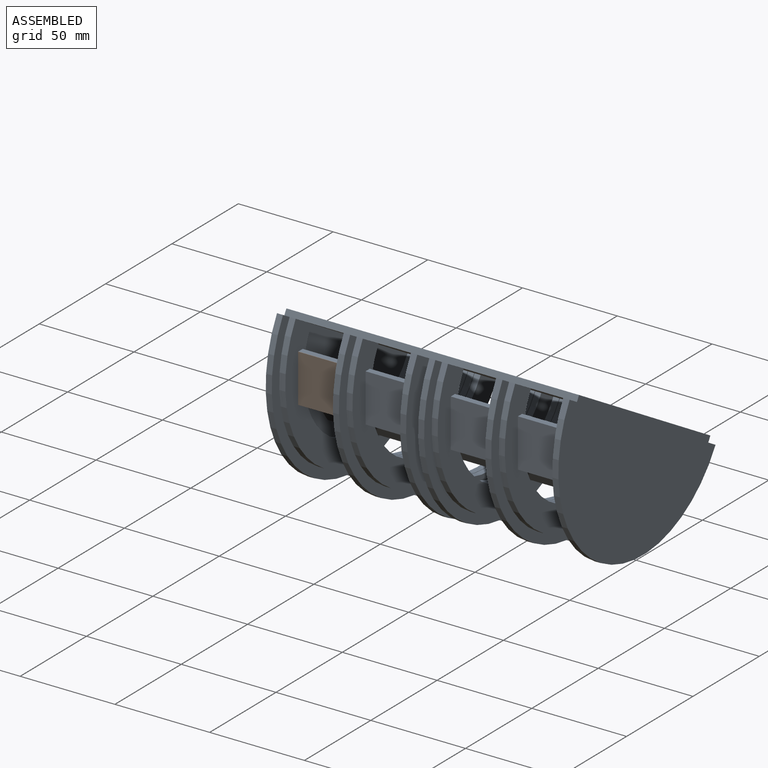
[diagram: assembled view]
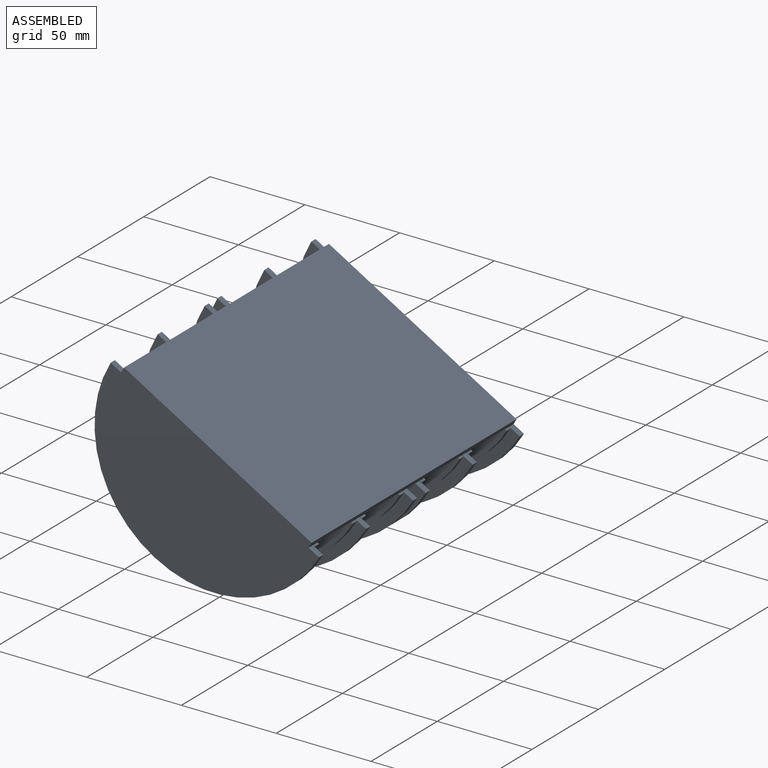
[diagram: assembled view, second angle]
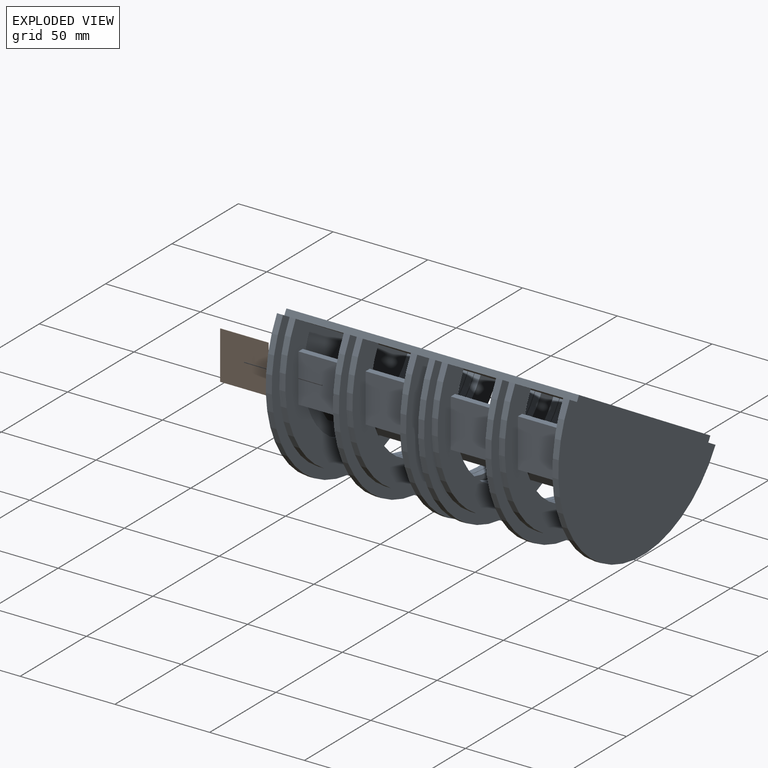
[diagram: exploded view]
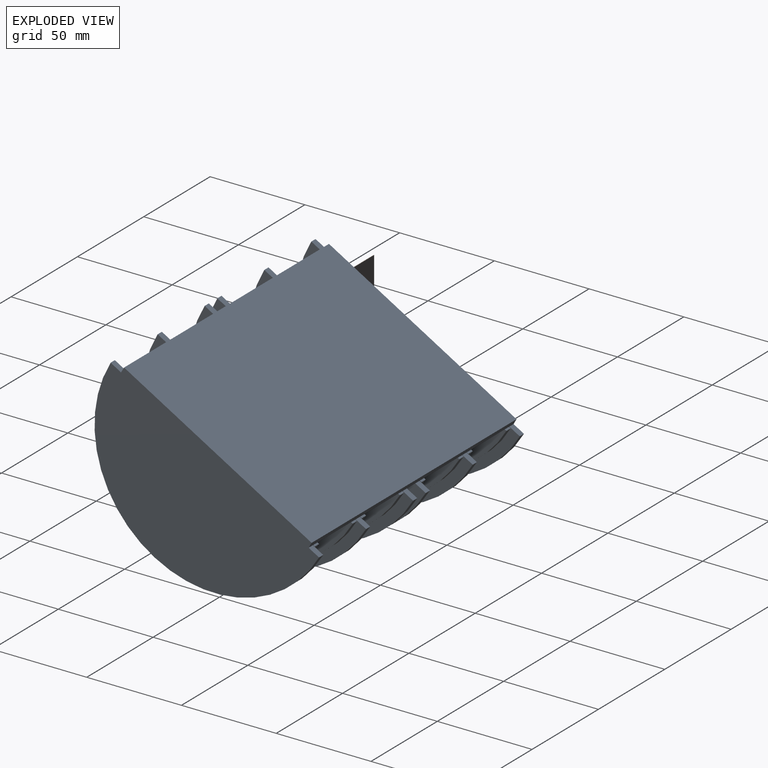
[diagram: exploded view, second angle]
ASSEMBLY  parts=2 mates=3
PART A: 146 faces, bbox 154.4x118.5x95.3 mm
  f0: plane 118.49x95.25mm, normal (-1,0,0), area 6091.9mm2, adj f26,f80,f81,f82,f86,f87,f88,f89
  f1: plane 118.49x95.25mm, normal (1,0,0), area 6091.9mm2, adj f26,f83,f84,f85,f86,f87,f88,f89
  f2: plane 108.54x87.25mm, normal (-1,0,0), area 2130.2mm2, adj f26,f27,f28,f29,f30,f122,f123,f124
  f3: plane 108.54x87.25mm, normal (1,0,0), area 2130.2mm2, adj f26,f27,f28,f29,f30,f142,f143,f144
  f4: plane 108.54x87.25mm, normal (-1,0,0), area 2130.2mm2, adj f26,f36,f37,f38,f39,f98,f99,f100
  f5: plane 108.54x87.25mm, normal (1,0,0), area 2130.2mm2, adj f26,f36,f37,f38,f39,f130,f131,f132
  f6: plane 108.54x87.25mm, normal (-1,0,0), area 2130.2mm2, adj f26,f40,f41,f42,f43,f134,f135,f136
  f7: plane 108.54x87.25mm, normal (1,0,0), area 2130.2mm2, adj f26,f40,f41,f42,f43,f94,f95,f96
  f8: plane 108.54x87.25mm, normal (-1,0,0), area 2130.2mm2, adj f26,f44,f45,f46,f47,f138,f139,f140
  f9: plane 108.54x87.25mm, normal (1,0,0), area 2130.2mm2, adj f26,f44,f45,f46,f47,f134,f135,f136
  f10: plane 108.54x87.25mm, normal (-1,0,0), area 2130.2mm2, adj f26,f48,f49,f50,f51,f130,f131,f132
  f11: plane 108.54x87.25mm, normal (1,0,0), area 2130.2mm2, adj f26,f48,f49,f50,f51,f102,f103,f104
  f12: plane 108.54x87.25mm, normal (-1,0,0), area 2130.2mm2, adj f26,f52,f53,f54,f55,f110,f111,f112
  f13: plane 108.54x87.25mm, normal (1,0,0), area 2130.2mm2, adj f26,f52,f53,f54,f55,f126,f127,f128
  f14: plane 108.54x87.25mm, normal (-1,0,0), area 2130.2mm2, adj f26,f56,f57,f58,f59,f126,f127,f128
  f15: plane 108.54x87.25mm, normal (1,0,0), area 2130.2mm2, adj f26,f56,f57,f58,f59,f114,f115,f116
  f16: plane 108.54x87.25mm, normal (-1,0,0), area 2130.2mm2, adj f26,f60,f61,f62,f63,f118,f119,f120
  f17: plane 108.54x87.25mm, normal (1,0,0), area 2130.2mm2, adj f26,f60,f61,f62,f63,f122,f123,f124
  f18: plane 118.49x95.25mm, normal (1,0,0), area 3149.6mm2, adj f26,f64,f65,f66,f67,f118,f119,f120
  f19: plane 118.49x95.25mm, normal (-1,0,0), area 3149.6mm2, adj f26,f64,f65,f66,f67,f114,f115,f116
  f20: plane 118.49x95.25mm, normal (1,0,0), area 3149.6mm2, adj f26,f68,f69,f70,f71,f110,f111,f112
  f21: plane 118.49x95.25mm, normal (-1,0,0), area 3149.6mm2, adj f26,f68,f69,f70,f71,f106,f107,f108
  f22: plane 118.49x95.25mm, normal (1,0,0), area 3149.6mm2, adj f26,f72,f73,f74,f75,f106,f107,f108
  f23: plane 118.49x95.25mm, normal (-1,0,0), area 3149.6mm2, adj f26,f72,f73,f74,f75,f102,f103,f104
  f24: plane 118.49x95.25mm, normal (1,0,0), area 3149.6mm2, adj f26,f76,f77,f78,f79,f98,f99,f100
  f25: plane 118.49x95.25mm, normal (-1,0,0), area 3149.6mm2, adj f26,f76,f77,f78,f79,f94,f95,f96
  f26: plane 148.08x98.99mm, normal (0,-0.5,-0.87), area 15958mm2, adj f0,f1,f2,f3,f4,f5,f6,f7
  f27: plane 3.18x0.88mm, normal (0,0.5,0.87), area 3.2mm2, adj f2,f3,f28,f35
  f28: cylinder r=58.17mm len=108.54mm, axis (1,0,0), area 580.2mm2, adj f2,f3,f27,f29
  f29: plane 3.18x0.88mm, normal (0,0.5,0.87), area 3.2mm2, adj f2,f3,f28,f34
  f30: cylinder r=44.45mm len=82.95mm, axis (1,0,0), area 443.4mm2, adj f2,f3,f26
  f31: plane 118.49x95.25mm, normal (-1,0,0), area 6696.7mm2, adj f32,f34,f35,f83,f84,f85
  f32: plane 154.43x98.99mm, normal (0,0.5,0.87), area 17651.6mm2, adj f31,f33,f34,f35
  f33: plane 118.49x95.25mm, normal (1,0,0), area 6696.7mm2, adj f32,f34,f35,f80,f81,f82
  f34: plane 154.43x2.75mm, normal (0,0.87,-0.5), area 490.3mm2, adj f26,f29,f31,f32,f33,f37,f41,f45
  f35: plane 154.43x2.75mm, normal (0,-0.87,0.5), area 490.3mm2, adj f26,f27,f31,f32,f33,f36,f40,f44
  f36: plane 3.18x0.88mm, normal (0,0.5,0.87), area 3.2mm2, adj f4,f5,f35,f38
  f37: plane 3.18x0.88mm, normal (0,0.5,0.87), area 3.2mm2, adj f4,f5,f34,f38
  f38: cylinder r=58.17mm len=108.54mm, axis (1,0,0), area 580.2mm2, adj f4,f5,f36,f37
  f39: cylinder r=44.45mm len=82.95mm, axis (1,0,0), area 443.4mm2, adj f4,f5,f26
  f40: plane 3.18x0.88mm, normal (0,0.5,0.87), area 3.2mm2, adj f6,f7,f35,f42
  f41: plane 3.18x0.88mm, normal (0,0.5,0.87), area 3.2mm2, adj f6,f7,f34,f42
  f42: cylinder r=58.17mm len=108.54mm, axis (1,0,0), area 580.2mm2, adj f6,f7,f40,f41
  f43: cylinder r=44.45mm len=82.95mm, axis (1,0,0), area 443.4mm2, adj f6,f7,f26
  f44: plane 3.18x0.88mm, normal (0,0.5,0.87), area 3.2mm2, adj f8,f9,f35,f46
  f45: plane 3.18x0.88mm, normal (0,0.5,0.87), area 3.2mm2, adj f8,f9,f34,f46
  f46: cylinder r=58.17mm len=108.54mm, axis (1,0,0), area 580.2mm2, adj f8,f9,f44,f45
  f47: cylinder r=44.45mm len=82.95mm, axis (1,0,0), area 443.4mm2, adj f8,f9,f26
  f48: plane 3.18x0.88mm, normal (0,0.5,0.87), area 3.2mm2, adj f10,f11,f35,f50
  f49: plane 3.18x0.88mm, normal (0,0.5,0.87), area 3.2mm2, adj f10,f11,f34,f50
  f50: cylinder r=58.17mm len=108.54mm, axis (1,0,0), area 580.2mm2, adj f10,f11,f48,f49
  f51: cylinder r=44.45mm len=82.95mm, axis (1,0,0), area 443.4mm2, adj f10,f11,f26
  f52: plane 3.18x0.88mm, normal (0,0.5,0.87), area 3.2mm2, adj f12,f13,f35,f54
  f53: plane 3.18x0.88mm, normal (0,0.5,0.87), area 3.2mm2, adj f12,f13,f34,f54
  f54: cylinder r=58.17mm len=108.54mm, axis (1,0,0), area 580.2mm2, adj f12,f13,f52,f53
  f55: cylinder r=44.45mm len=82.95mm, axis (1,0,0), area 443.4mm2, adj f12,f13,f26
  f56: plane 3.18x0.88mm, normal (0,0.5,0.87), area 3.2mm2, adj f14,f15,f35,f58
  f57: plane 3.18x0.88mm, normal (0,0.5,0.87), area 3.2mm2, adj f14,f15,f34,f58
  f58: cylinder r=58.17mm len=108.54mm, axis (1,0,0), area 580.2mm2, adj f14,f15,f56,f57
  f59: cylinder r=44.45mm len=82.95mm, axis (1,0,0), area 443.4mm2, adj f14,f15,f26
  f60: plane 3.18x0.88mm, normal (0,0.5,0.87), area 3.2mm2, adj f16,f17,f35,f62
  f61: plane 3.18x0.88mm, normal (0,0.5,0.87), area 3.2mm2, adj f16,f17,f34,f62
  f62: cylinder r=58.17mm len=108.54mm, axis (1,0,0), area 580.2mm2, adj f16,f17,f60,f61
  f63: cylinder r=44.45mm len=82.95mm, axis (1,0,0), area 443.4mm2, adj f16,f17,f26
  f64: plane 5.5x3.18mm, normal (0,0.5,0.87), area 20.2mm2, adj f18,f19,f34,f65
  f65: cylinder r=63.5mm len=118.49mm, axis (-1,0,0), area 633.4mm2, adj f18,f19,f64,f67
  f66: cylinder r=44.45mm len=82.95mm, axis (-1,0,0), area 443.4mm2, adj f18,f19,f26
  f67: plane 5.5x3.18mm, normal (0,0.5,0.87), area 20.2mm2, adj f18,f19,f35,f65
  f68: plane 5.5x3.18mm, normal (0,0.5,0.87), area 20.2mm2, adj f20,f21,f34,f69
  f69: cylinder r=63.5mm len=118.49mm, axis (-1,0,0), area 633.4mm2, adj f20,f21,f68,f71
  f70: cylinder r=44.45mm len=82.95mm, axis (-1,0,0), area 443.4mm2, adj f20,f21,f26
  f71: plane 5.5x3.18mm, normal (0,0.5,0.87), area 20.2mm2, adj f20,f21,f35,f69
  f72: plane 5.5x3.18mm, normal (0,0.5,0.87), area 20.2mm2, adj f22,f23,f34,f73
  f73: cylinder r=63.5mm len=118.49mm, axis (-1,0,0), area 633.4mm2, adj f22,f23,f72,f75
  f74: cylinder r=44.45mm len=82.95mm, axis (-1,0,0), area 443.4mm2, adj f22,f23,f26
  f75: plane 5.5x3.18mm, normal (0,0.5,0.87), area 20.2mm2, adj f22,f23,f35,f73
  f76: plane 5.5x3.18mm, normal (0,0.5,0.87), area 20.2mm2, adj f24,f25,f34,f77
  f77: cylinder r=63.5mm len=118.49mm, axis (-1,0,0), area 633.4mm2, adj f24,f25,f76,f79
  f78: cylinder r=44.45mm len=82.95mm, axis (-1,0,0), area 443.4mm2, adj f24,f25,f26
  f79: plane 5.5x3.18mm, normal (0,0.5,0.87), area 20.2mm2, adj f24,f25,f35,f77
  f80: plane 5.5x3.18mm, normal (0,0.5,0.87), area 20.2mm2, adj f0,f33,f34,f81
  f81: cylinder r=63.5mm len=118.49mm, axis (-1,0,0), area 633.4mm2, adj f0,f33,f80,f82
  f82: plane 5.5x3.18mm, normal (0,0.5,0.87), area 20.2mm2, adj f0,f33,f35,f81
  f83: plane 5.5x3.18mm, normal (0,0.5,0.87), area 20.2mm2, adj f1,f31,f34,f84
  f84: cylinder r=63.5mm len=118.49mm, axis (-1,0,0), area 633.4mm2, adj f1,f31,f83,f85
  f85: plane 5.5x3.18mm, normal (0,0.5,0.87), area 20.2mm2, adj f1,f31,f35,f84
  f86: plane 148.08x3.18mm, normal (0,1,0), area 470.2mm2, adj f0,f1,f87,f89
  f87: plane 148.08x25.4mm, normal (0,0,-1), area 3761.3mm2, adj f0,f1,f86,f88
  f88: plane 148.08x3.18mm, normal (0,-1,0), area 470.2mm2, adj f0,f1,f87,f89
  f89: plane 148.08x25.4mm, normal (0,0,1), area 3761.3mm2, adj f0,f1,f86,f88
  f90: plane 148.08x20.55mm, normal (0,-0.81,-0.59), area 3761.3mm2, adj f0,f1,f91,f92
  f91: plane 148.08x2.57mm, normal (0,0.59,-0.81), area 470.2mm2, adj f0,f1,f90,f93
  f92: plane 148.08x2.57mm, normal (0,-0.59,0.81), area 470.2mm2, adj f0,f1,f90,f93
  f93: plane 148.08x20.55mm, normal (0,0.81,0.59), area 3761.3mm2, adj f0,f1,f91,f92
  f94: plane 3.18x0.25mm, normal (0,0,-1), area 0.8mm2, adj f7,f25,f95,f97
  f95: plane 25.4x0.25mm, normal (0,1,0), area 6.5mm2, adj f7,f25,f94,f96
  f96: plane 3.18x0.25mm, normal (0,0,1), area 0.8mm2, adj f7,f25,f95,f97
  f97: plane 25.4x0.25mm, normal (0,-1,0), area 6.5mm2, adj f7,f25,f94,f96
  f98: plane 3.18x0.25mm, normal (0,0,-1), area 0.8mm2, adj f4,f24,f99,f101
  f99: plane 25.4x0.25mm, normal (0,1,0), area 6.5mm2, adj f4,f24,f98,f100
  f100: plane 3.18x0.25mm, normal (0,0,1), area 0.8mm2, adj f4,f24,f99,f101
  f101: plane 25.4x0.25mm, normal (0,-1,0), area 6.5mm2, adj f4,f24,f98,f100
  f102: plane 3.18x0.25mm, normal (0,0,-1), area 0.8mm2, adj f11,f23,f103,f105
  f103: plane 25.4x0.25mm, normal (0,1,0), area 6.5mm2, adj f11,f23,f102,f104
  f104: plane 3.18x0.25mm, normal (0,0,1), area 0.8mm2, adj f11,f23,f103,f105
  f105: plane 25.4x0.25mm, normal (0,-1,0), area 6.5mm2, adj f11,f23,f102,f104
  f106: plane 6.35x3.18mm, normal (0,0,-1), area 20.2mm2, adj f21,f22,f107,f109
  f107: plane 25.4x6.35mm, normal (0,1,0), area 161.3mm2, adj f21,f22,f106,f108
  f108: plane 6.35x3.18mm, normal (0,0,1), area 20.2mm2, adj f21,f22,f107,f109
  f109: plane 25.4x6.35mm, normal (0,-1,0), area 161.3mm2, adj f21,f22,f106,f108
  f110: plane 3.18x0.25mm, normal (0,0,-1), area 0.8mm2, adj f12,f20,f111,f113
  f111: plane 25.4x0.25mm, normal (0,1,0), area 6.5mm2, adj f12,f20,f110,f112
  f112: plane 3.18x0.25mm, normal (0,0,1), area 0.8mm2, adj f12,f20,f111,f113
  f113: plane 25.4x0.25mm, normal (0,-1,0), area 6.5mm2, adj f12,f20,f110,f112
  f114: plane 3.18x0.25mm, normal (0,0,-1), area 0.8mm2, adj f15,f19,f115,f117
  f115: plane 25.4x0.25mm, normal (0,1,0), area 6.5mm2, adj f15,f19,f114,f116
  f116: plane 3.18x0.25mm, normal (0,0,1), area 0.8mm2, adj f15,f19,f115,f117
  f117: plane 25.4x0.25mm, normal (0,-1,0), area 6.5mm2, adj f15,f19,f114,f116
  f118: plane 3.18x0.25mm, normal (0,0,-1), area 0.8mm2, adj f16,f18,f119,f121
  f119: plane 25.4x0.25mm, normal (0,1,0), area 6.5mm2, adj f16,f18,f118,f120
  f120: plane 3.18x0.25mm, normal (0,0,1), area 0.8mm2, adj f16,f18,f119,f121
  f121: plane 25.4x0.25mm, normal (0,-1,0), area 6.5mm2, adj f16,f18,f118,f120
  f122: plane 25.4x3.18mm, normal (0,0,-1), area 80.6mm2, adj f2,f17,f123,f125
  f123: plane 25.4x25.4mm, normal (0,1,0), area 645.2mm2, adj f2,f17,f122,f124
  f124: plane 25.4x3.18mm, normal (0,0,1), area 80.6mm2, adj f2,f17,f123,f125
  f125: plane 25.4x25.4mm, normal (0,-1,0), area 645.2mm2, adj f2,f17,f122,f124
  f126: plane 25.4x3.18mm, normal (0,0,-1), area 80.6mm2, adj f13,f14,f127,f129
  f127: plane 25.4x25.4mm, normal (0,1,0), area 645.2mm2, adj f13,f14,f126,f128
  f128: plane 25.4x3.18mm, normal (0,0,1), area 80.6mm2, adj f13,f14,f127,f129
  f129: plane 25.4x25.4mm, normal (0,-1,0), area 645.2mm2, adj f13,f14,f126,f128
  f130: plane 25.4x3.18mm, normal (0,0,-1), area 80.6mm2, adj f5,f10,f131,f133
  f131: plane 25.4x25.4mm, normal (0,1,0), area 645.2mm2, adj f5,f10,f130,f132
  f132: plane 25.4x3.18mm, normal (0,0,1), area 80.6mm2, adj f5,f10,f131,f133
  f133: plane 25.4x25.4mm, normal (0,-1,0), area 645.2mm2, adj f5,f10,f130,f132
  f134: plane 25.4x3.18mm, normal (0,0,-1), area 80.6mm2, adj f6,f9,f135,f137
  f135: plane 25.4x25.4mm, normal (0,1,0), area 645.2mm2, adj f6,f9,f134,f136
  f136: plane 25.4x3.18mm, normal (0,0,1), area 80.6mm2, adj f6,f9,f135,f137
  f137: plane 25.4x25.4mm, normal (0,-1,0), area 645.2mm2, adj f6,f9,f134,f136
  f138: plane 3.18x0.25mm, normal (0,0,-1), area 0.8mm2, adj f1,f8,f139,f141
  f139: plane 25.4x0.25mm, normal (0,1,0), area 6.5mm2, adj f1,f8,f138,f140
  f140: plane 3.18x0.25mm, normal (0,0,1), area 0.8mm2, adj f1,f8,f139,f141
  f141: plane 25.4x0.25mm, normal (0,-1,0), area 6.5mm2, adj f1,f8,f138,f140
  f142: plane 25.4x0.25mm, normal (0,-1,0), area 6.5mm2, adj f0,f3,f143,f145
  f143: plane 3.18x0.25mm, normal (0,0,1), area 0.8mm2, adj f0,f3,f142,f144
  f144: plane 25.4x0.25mm, normal (0,1,0), area 6.5mm2, adj f0,f3,f143,f145
  f145: plane 3.18x0.25mm, normal (0,0,-1), area 0.8mm2, adj f0,f3,f142,f144
PART B: 6 faces, bbox 25.4x25.4x0.3 mm
  f0: plane 25.4x0.25mm, normal (0,1,0), area 6.5mm2, adj f1,f3,f4,f5
  f1: plane 25.4x0.25mm, normal (-1,0,0), area 6.5mm2, adj f0,f2,f4,f5
  f2: plane 25.4x0.25mm, normal (0,-1,0), area 6.5mm2, adj f1,f3,f4,f5
  f3: plane 25.4x0.25mm, normal (1,0,0), area 6.5mm2, adj f0,f2,f4,f5
  f4: plane 25.4x25.4mm, normal (0,0,1), area 645.2mm2, adj f0,f1,f2,f3
  f5: plane 25.4x25.4mm, normal (0,0,-1), area 645.2mm2, adj f0,f1,f2,f3
PLACE A at identity fixed
PLACE B rot(axis=(1,0,0),90deg) t=(-131.7,-48.26,0)mm
MATE planar B.f1 <-> A.f9  axis (-1,0,0) through (-144.4,-48.39,0)mm
MATE planar B.f5 <-> A.f137  axis (0,1,0) through (-144.4,-48.26,0)mm
MATE planar B.f0 <-> A.f136  axis (0,0,1) through (-144.4,-48.39,12.7)mm
